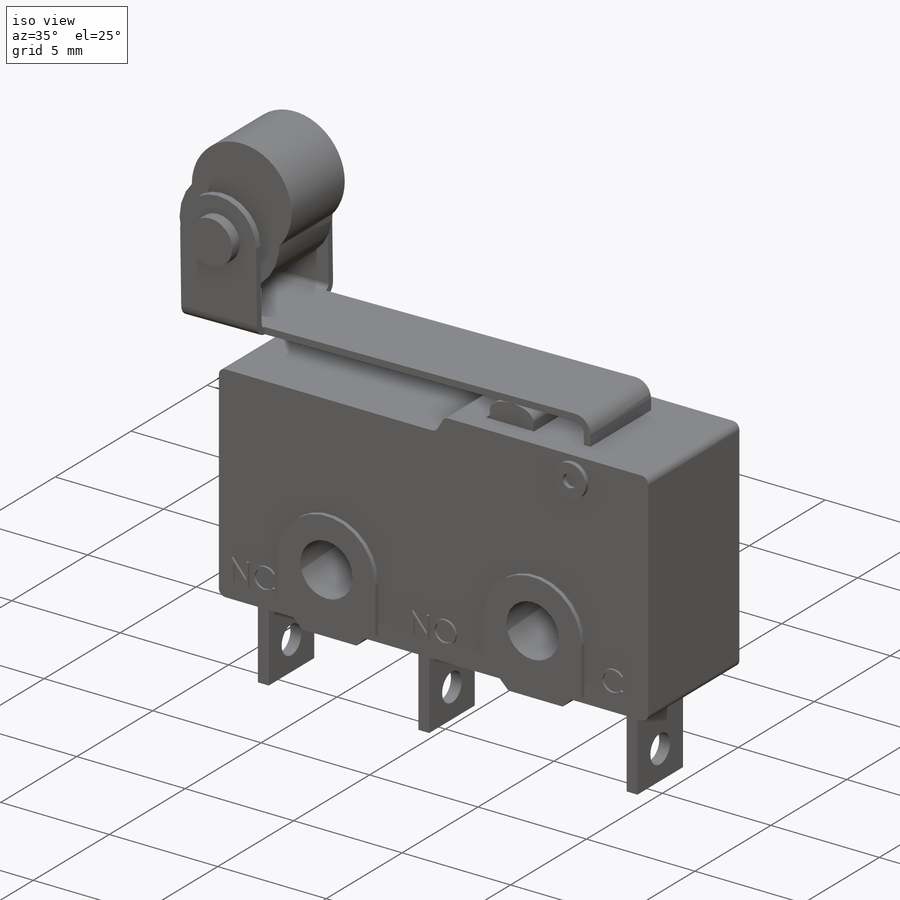
[diagram: iso view]
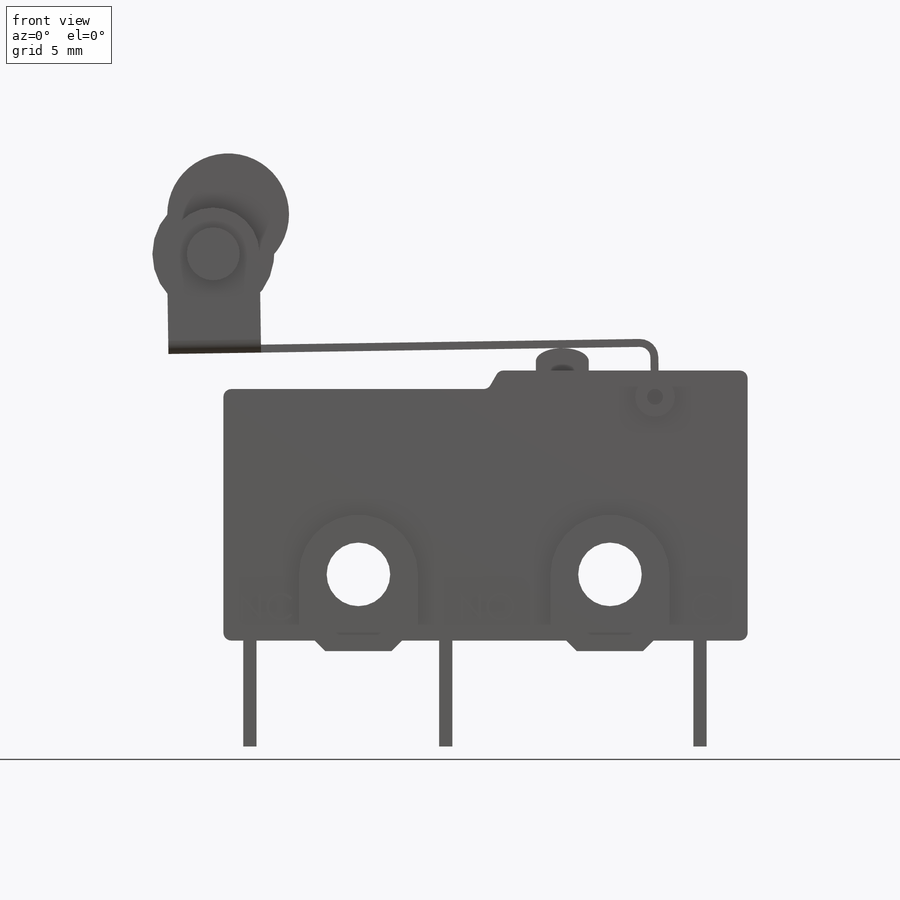
[diagram: front view]
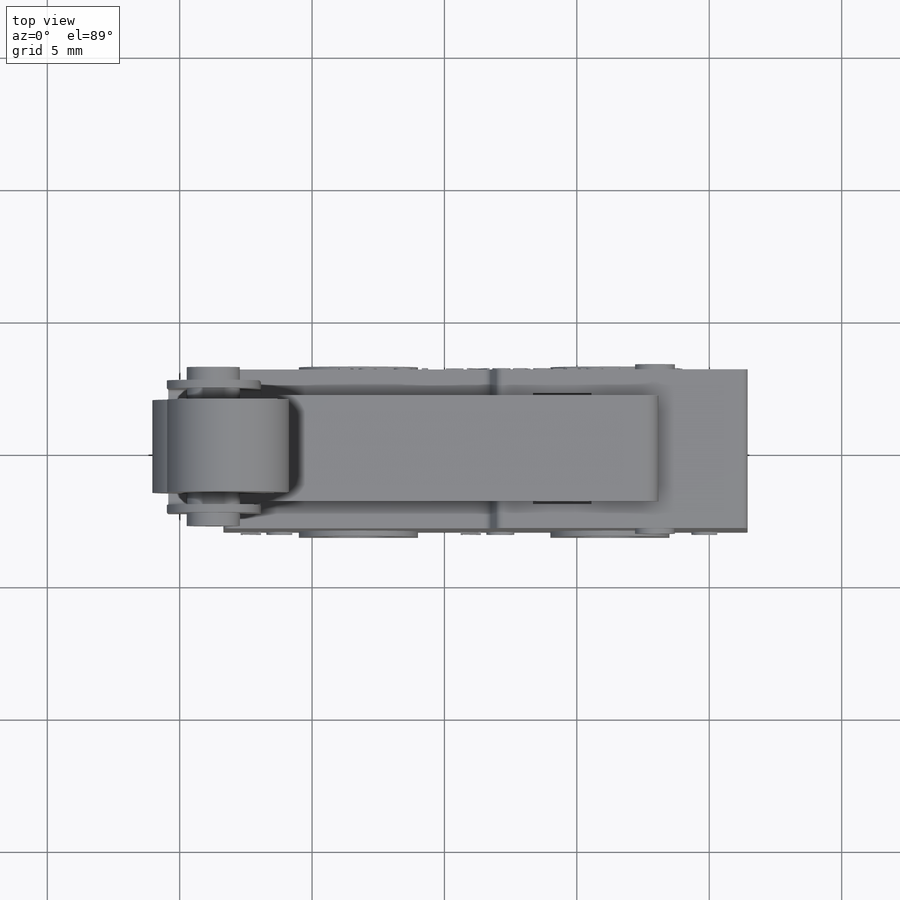
[diagram: top view]
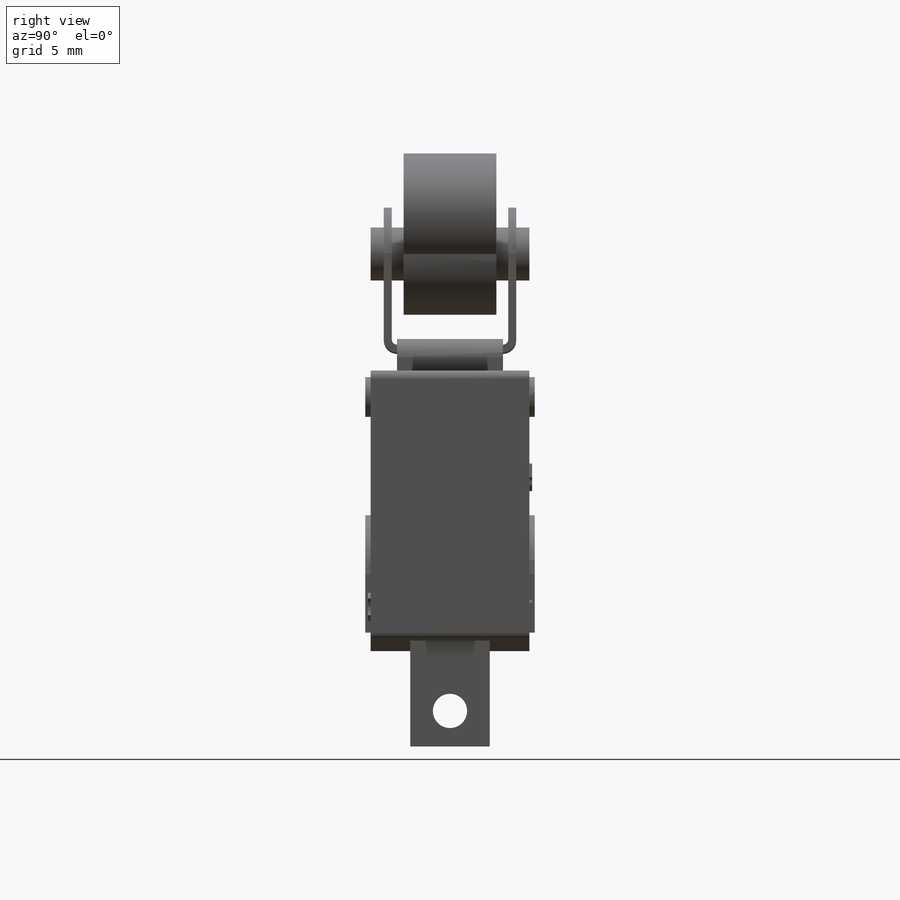
[diagram: right view]
SOLIDWORKS PART (.sldprt)
format: sldprt  version: not decoded by parser v0  size: 889,856 bytes
history: native  units: mm
features: sketch x15, extrude x12, plane x3, cut_extrude x3, fillet x2, material x1 (+8 scaffold rows collapsed)
feature tree (44):
  scaffold x8  (default folders/planes/origin — collapsed)
  material  "Matériau <non spécifié>"
  plane  "Plan de face"
  plane  "Plan de dessus"
  plane  "Plan de droite"
  sketch  "Esquisse1"  dims[c1.D2=~7.014901mm c1.D3=2.4mm c1.D4=2.5mm c1.D11=0.3mm c1.D1=2.5mm c2.D2=9.5mm c2.D4=2.9mm c2.D5=5.1mm c2.D6=19.8mm c2.D7=10.0mm c2.D8=0.7mm c2.D9=10.6mm c2.D10=3.0mm c3.D10=90.0deg c4.D10=0.4mm c4.D12=~1.448528mm c5.D12=120.0deg c5.D13=3.0mm c6.D13=135.0deg]
  extrude  "Boss.-Extru.1"  Depth=6mm
  sketch  "Esquisse2"  dims[c1.D1=2.25mm c1.D5=~1.415927mm c1.D7=1.5mm c1.D8=0.6mm c1.D2=2.2mm c1.D4=5.0mm c2.D5=3.5mm c2.D6=1.0mm c2.D3=2.0]
  extrude  "Boss.-Extru.2"  Depth=6.4mm
  sketch  "Esquisse3"
  extrude  "Boss.-Extru.3"  Depth=0.1mm
  sketch  "Esquisse18"  dims[D1=5.9mm D2=2.0mm D3=2.2mm]
  cut_extrude  "Enlèv. mat.-Extru.3"  Depth=4.2mm
  sketch  "Esquisse9"  dims[c1.D4=0.4mm c1.D5=0.7mm c1.D8=35.2mm c1.D9=4.6mm c1.D1=0.3mm c1.D2=0.3mm c1.D3=2.2mm c1.D6=18.5mm c1.D7=3.5mm c2.D8=3.75mm c2.D10=3.75mm c2.D11=15.0mm c2.D7=0.01mm]
  extrude  "Boss.-Extru.15"  Depth=4mm
  sketch  "Esquisse10"  dims[c1.D1=~2.012002mm c2.D1=~0.119867deg c3.D1=3.5mm c3.D2=3.75mm]
  extrude  "Boss.-Extru.16"  Depth=5mm
  sketch  "Esquisse5"  dims[c1.D1=2.0mm c1.D2=6.0mm c1.D3=0.7mm c2.D1=2.0mm c2.D2=0.5mm c2.D3=0.45mm c2.D4=2.0mm c2.D5=6.0mm c3.D1=0.5mm c3.D2=2.0mm]
  extrude  "Boss.-Extru.4"  Depth=4mm
  sketch  "Esquisse11"  dims[D1=6.0mm]
  cut_extrude  "Enlèv. mat.-Extru.1"  Depth=4.4mm
  sketch  "Esquisse12"  dims[D1=2.0mm]
  extrude  "Boss.-Extru.17"  Depth=6mm
  sketch  "Esquisse13"  dims[D1=4.5mm]
  extrude  "Boss.-Extru.18"  Depth=3.5mm
  fillet  "Congé1"  Radius=0.2mm
  fillet  "Congé2"  Radius=0.5mm
  sketch  "Esquisse15"  dims[D1=9.6mm D2=7.4mm D3=0.5mm D4=1.55mm D5=4.0mm]
  extrude  "Boss.-Extru.19"  Depth=3mm
  sketch  "Esquisse16"
  cut_extrude  "Enlèv. mat.-Extru.2"  [1 undecoded]
  sketch  "Esquisse7"
  extrude  "Boss.-Extru.5"  Depth=0.1mm
  sketch  "Esquisse8"
  extrude  "Boss.-Extru.6"  Depth=0.1mm
  sketch  "Esquisse17"  dims[D2=~2.073877mm D1=16.5mm]
  extrude  "Boss.-Extru.20"  Depth=3.5mm
decode coverage: 27 of 32 modeling features carry decoded parameters
note: ~ marks probable driven/reference dimensions
note: 1 parameter value undecoded
note: suppression state not decoded; provenance and decode notes live in map.json
